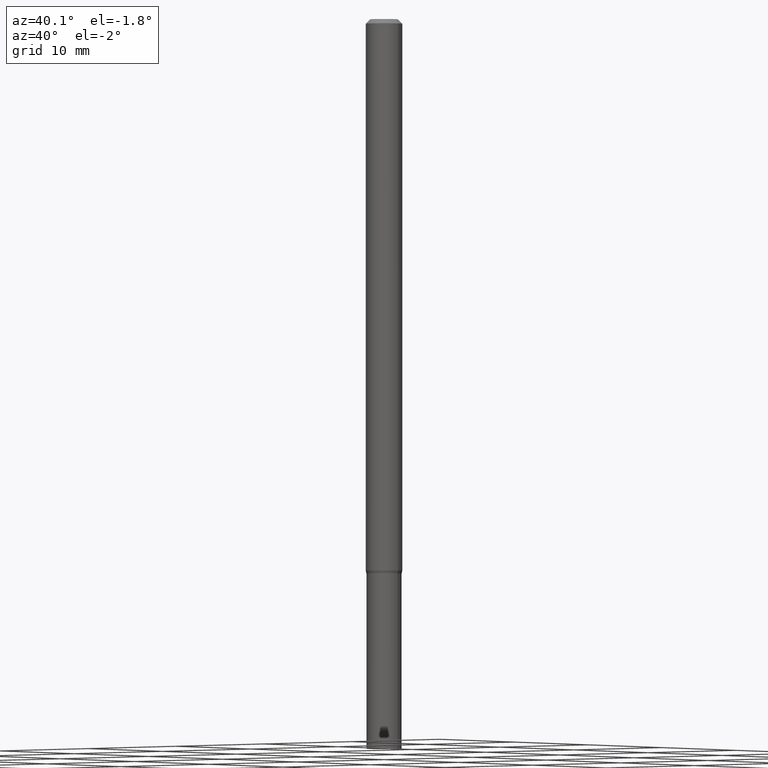
[diagram: clean part render]
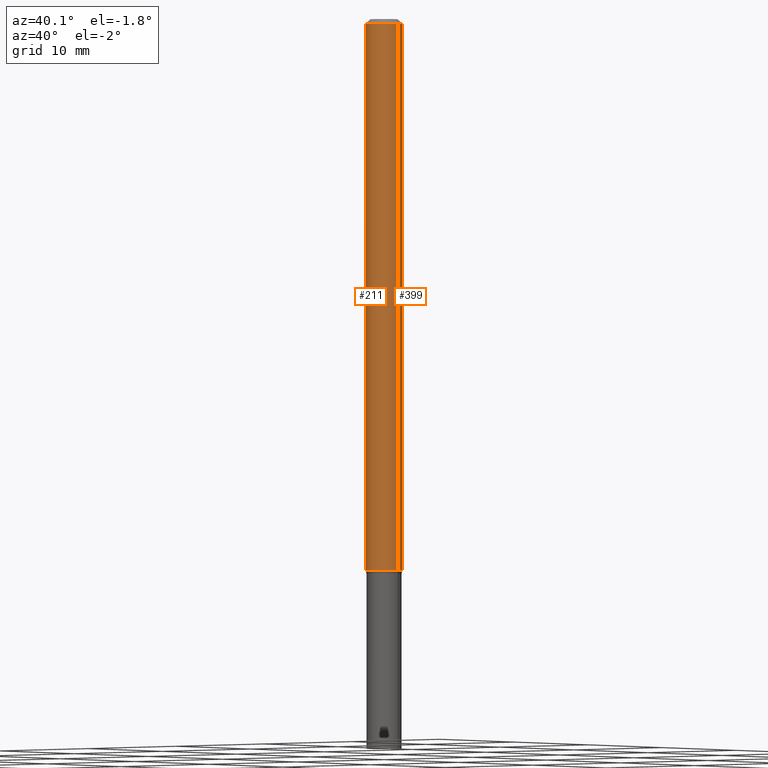
[diagram: same view with one multi-face feature highlighted, each face labeled with its STEP entity id]
A machine part, auxiliary view. The highlighted faces form ONE feature: a constant-radius fillet chain: 2 tangent blend faces with common blend radius 1.5875 mm. The faces share edges in the B-rep.
Their STEP definitions:
[1] entity #211 (Cylinder):
#32 = DIRECTION ( 'NONE',  ( 1.000000000000000000, -6.982962677686262766E-15, 0.000000000000000000 ) ) ;
#46 = VERTEX_POINT ( 'NONE', #293 ) ;
#48 = AXIS2_PLACEMENT_3D ( 'NONE', #334, #220, #298 ) ;
#52 = CARTESIAN_POINT ( 'NONE',  ( 0.000000000000000000, 0.000000000000000000, 0.000000000000000000 ) ) ;
#58 = CARTESIAN_POINT ( 'NONE',  ( -0.06250000000000000000, -2.882716189904449546E-15, -0.01499999999999999944 ) ) ;
#65 = DIRECTION ( 'NONE',  ( -2.445468806185136877E-29, 3.491481338843145188E-15, 1.000000000000000000 ) ) ;
#72 = EDGE_LOOP ( 'NONE', ( #205, #181, #198, #182 ) ) ;
#78 = DIRECTION ( 'NONE',  ( -2.445468806185136597E-29, 3.491481338843145583E-15, 1.000000000000000000 ) ) ;
#83 = CARTESIAN_POINT ( 'NONE',  ( -0.06250000000000000000, -6.157149369576314234E-15, -1.890669872981078692 ) ) ;
#99 = VECTOR ( 'NONE', #65, 39.37007874015748143 ) ;
#100 = VERTEX_POINT ( 'NONE', #83 ) ;
#136 = LINE ( 'NONE', #168, #99 ) ;
#141 = VERTEX_POINT ( 'NONE', #58 ) ;
#168 = CARTESIAN_POINT ( 'NONE',  ( -0.06250000000000000000, 4.440892098500626162E-16, -3.074334431409316114E-30 ) ) ;
#177 = VECTOR ( 'NONE', #196, 39.37007874015748143 ) ;
#181 = ORIENTED_EDGE ( 'NONE', *, *, #368, .T. ) ;
#182 = ORIENTED_EDGE ( 'NONE', *, *, #232, .F. ) ;
#196 = DIRECTION ( 'NONE',  ( -2.445468806185136877E-29, 3.491481338843145188E-15, 1.000000000000000000 ) ) ;
#198 = ORIENTED_EDGE ( 'NONE', *, *, #275, .T. ) ;
#203 = CIRCLE ( 'NONE', #209, 0.06250000000000000000 ) ;
#205 = ORIENTED_EDGE ( 'NONE', *, *, #367, .F. ) ;
#209 = AXIS2_PLACEMENT_3D ( 'NONE', #280, #431, #32 ) ;
#211 = ADVANCED_FACE ( 'NONE', ( #445 ), #410, .T. ) ;
#220 = DIRECTION ( 'NONE',  ( -2.445468806185136597E-29, 3.491481338843145583E-15, 1.000000000000000000 ) ) ;
#232 = EDGE_CURVE ( 'NONE', #141, #392, #448, .T. ) ;
#254 = AXIS2_PLACEMENT_3D ( 'NONE', #52, #78, #450 ) ;
#262 = LINE ( 'NONE', #414, #177 ) ;
#275 = EDGE_CURVE ( 'NONE', #46, #392, #262, .T. ) ;
#280 = CARTESIAN_POINT ( 'NONE',  ( 4.623574197169242373E-29, -6.601238579426376850E-15, -1.890669872981078692 ) ) ;
#293 = CARTESIAN_POINT ( 'NONE',  ( 0.06250000000000000000, -7.037673746781767731E-15, -1.890669872981078692 ) ) ;
#298 = DIRECTION ( 'NONE',  ( 1.000000000000000000, -6.982962677686266711E-15, 0.000000000000000000 ) ) ;
#311 = CARTESIAN_POINT ( 'NONE',  ( 0.06250000000000000000, -4.888073874380388472E-16, -0.01499999999999999944 ) ) ;
#334 = CARTESIAN_POINT ( 'NONE',  ( 3.668203209277705088E-31, -5.237222008264718399E-17, -0.01499999999999999944 ) ) ;
#367 = EDGE_CURVE ( 'NONE', #100, #141, #136, .T. ) ;
#368 = EDGE_CURVE ( 'NONE', #100, #46, #203, .T. ) ;
#392 = VERTEX_POINT ( 'NONE', #311 ) ;
#410 = CYLINDRICAL_SURFACE ( 'NONE', #254, 0.06250000000000000000 ) ;
#414 = CARTESIAN_POINT ( 'NONE',  ( 0.06250000000000000000, -4.364351673553916694E-16, 3.047610484872459871E-30 ) ) ;
#431 = DIRECTION ( 'NONE',  ( -2.445468806185136597E-29, 3.491481338843145583E-15, 1.000000000000000000 ) ) ;
#445 = FACE_OUTER_BOUND ( 'NONE', #72, .T. ) ;
#448 = CIRCLE ( 'NONE', #48, 0.06250000000000000000 ) ;
#450 = DIRECTION ( 'NONE',  ( 1.000000000000000000, -6.982962677686266711E-15, 4.876176775795935793E-29 ) ) ;
[2] entity #399 (Cylinder):
#2 = ORIENTED_EDGE ( 'NONE', *, *, #367, .T. ) ;
#25 = EDGE_CURVE ( 'NONE', #392, #141, #228, .T. ) ;
#38 = CARTESIAN_POINT ( 'NONE',  ( 3.668203209277705088E-31, -5.237222008264718399E-17, -0.01499999999999999944 ) ) ;
#43 = EDGE_CURVE ( 'NONE', #46, #100, #166, .T. ) ;
#46 = VERTEX_POINT ( 'NONE', #293 ) ;
#58 = CARTESIAN_POINT ( 'NONE',  ( -0.06250000000000000000, -2.882716189904449546E-15, -0.01499999999999999944 ) ) ;
#62 = FACE_OUTER_BOUND ( 'NONE', #95, .T. ) ;
#65 = DIRECTION ( 'NONE',  ( -2.445468806185136877E-29, 3.491481338843145188E-15, 1.000000000000000000 ) ) ;
#75 = DIRECTION ( 'NONE',  ( -2.445468806185136597E-29, 3.491481338843145583E-15, 1.000000000000000000 ) ) ;
#83 = CARTESIAN_POINT ( 'NONE',  ( -0.06250000000000000000, -6.157149369576314234E-15, -1.890669872981078692 ) ) ;
#95 = EDGE_LOOP ( 'NONE', ( #402, #2, #357, #288 ) ) ;
#99 = VECTOR ( 'NONE', #65, 39.37007874015748143 ) ;
#100 = VERTEX_POINT ( 'NONE', #83 ) ;
#109 = AXIS2_PLACEMENT_3D ( 'NONE', #464, #272, #355 ) ;
#128 = CYLINDRICAL_SURFACE ( 'NONE', #109, 0.06250000000000000000 ) ;
#136 = LINE ( 'NONE', #168, #99 ) ;
#141 = VERTEX_POINT ( 'NONE', #58 ) ;
#166 = CIRCLE ( 'NONE', #323, 0.06250000000000000000 ) ;
#168 = CARTESIAN_POINT ( 'NONE',  ( -0.06250000000000000000, 4.440892098500626162E-16, -3.074334431409316114E-30 ) ) ;
#177 = VECTOR ( 'NONE', #196, 39.37007874015748143 ) ;
#196 = DIRECTION ( 'NONE',  ( -2.445468806185136877E-29, 3.491481338843145188E-15, 1.000000000000000000 ) ) ;
#228 = CIRCLE ( 'NONE', #308, 0.06250000000000000000 ) ;
#256 = DIRECTION ( 'NONE',  ( 1.000000000000000000, -6.982962677686266711E-15, 0.000000000000000000 ) ) ;
#262 = LINE ( 'NONE', #414, #177 ) ;
#272 = DIRECTION ( 'NONE',  ( -2.445468806185136597E-29, 3.491481338843145583E-15, 1.000000000000000000 ) ) ;
#275 = EDGE_CURVE ( 'NONE', #46, #392, #262, .T. ) ;
#288 = ORIENTED_EDGE ( 'NONE', *, *, #275, .F. ) ;
#293 = CARTESIAN_POINT ( 'NONE',  ( 0.06250000000000000000, -7.037673746781767731E-15, -1.890669872981078692 ) ) ;
#308 = AXIS2_PLACEMENT_3D ( 'NONE', #38, #75, #256 ) ;
#311 = CARTESIAN_POINT ( 'NONE',  ( 0.06250000000000000000, -4.888073874380388472E-16, -0.01499999999999999944 ) ) ;
#323 = AXIS2_PLACEMENT_3D ( 'NONE', #395, #325, #372 ) ;
#325 = DIRECTION ( 'NONE',  ( -2.445468806185136597E-29, 3.491481338843145583E-15, 1.000000000000000000 ) ) ;
#355 = DIRECTION ( 'NONE',  ( 1.000000000000000000, -6.982962677686266711E-15, 4.876176775795935793E-29 ) ) ;
#357 = ORIENTED_EDGE ( 'NONE', *, *, #25, .F. ) ;
#367 = EDGE_CURVE ( 'NONE', #100, #141, #136, .T. ) ;
#372 = DIRECTION ( 'NONE',  ( 1.000000000000000000, -6.982962677686262766E-15, 0.000000000000000000 ) ) ;
#392 = VERTEX_POINT ( 'NONE', #311 ) ;
#395 = CARTESIAN_POINT ( 'NONE',  ( 4.623574197169242373E-29, -6.601238579426376850E-15, -1.890669872981078692 ) ) ;
#399 = ADVANCED_FACE ( 'NONE', ( #62 ), #128, .T. ) ;
#402 = ORIENTED_EDGE ( 'NONE', *, *, #43, .T. ) ;
#414 = CARTESIAN_POINT ( 'NONE',  ( 0.06250000000000000000, -4.364351673553916694E-16, 3.047610484872459871E-30 ) ) ;
#464 = CARTESIAN_POINT ( 'NONE',  ( 0.000000000000000000, 0.000000000000000000, 0.000000000000000000 ) ) ;